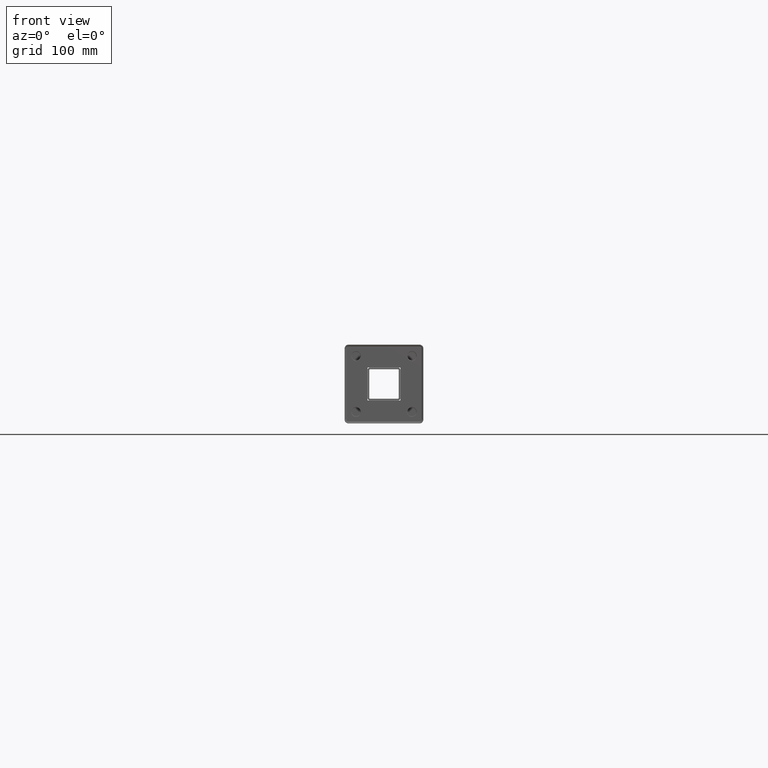
[diagram: clean part render]
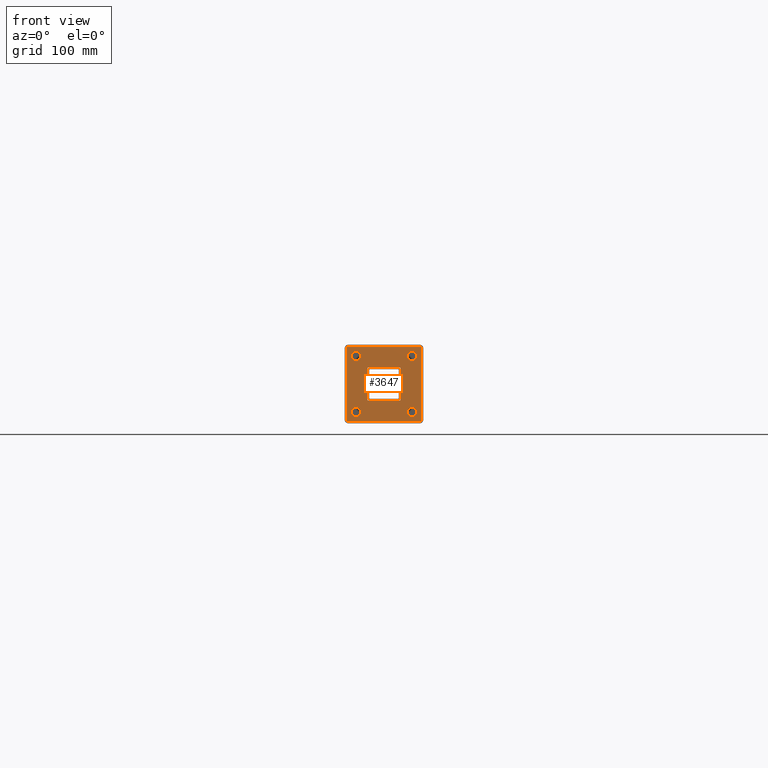
[diagram: same view with one face highlighted and labeled with its STEP entity id]
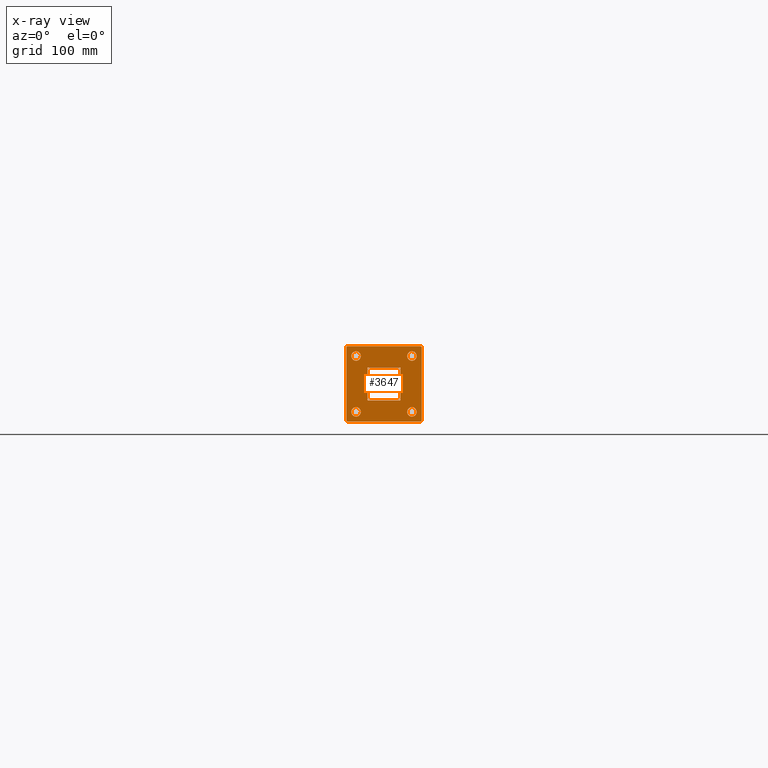
[diagram: x-ray of the same camera — body ghosted, the highlighted face saturated]
A machine part, front view. The second image highlights one B-rep face of the part: STEP entity #3647.
The next image is the same camera in x-ray: the body ghosted, the highlighted face saturated — about 0% of this face is hidden behind the body in this view.
In plain terms, the highlighted planar face has unit normal (0, 1, 0).
Its self-contained STEP definition (entity closure, byte-faithful):
#15 = CIRCLE ( 'NONE', #3242, 5.749999999999991100 ) ;
#26 = VERTEX_POINT ( 'NONE', #920 ) ;
#29 = CARTESIAN_POINT ( 'NONE',  ( 20.09999999999999800, 0.0000000000000000000, 20.10000000000000500 ) ) ;
#72 = DIRECTION ( 'NONE',  ( 0.0000000000000000000, 1.000000000000000000, 0.0000000000000000000 ) ) ;
#76 = CARTESIAN_POINT ( 'NONE',  ( -46.00000000000001400, 0.0000000000000000000, -46.00000000000000000 ) ) ;
#102 = DIRECTION ( 'NONE',  ( 0.0000000000000000000, 0.0000000000000000000, 1.000000000000000000 ) ) ;
#109 = EDGE_CURVE ( 'NONE', #653, #1579, #1048, .T. ) ;
#120 = VERTEX_POINT ( 'NONE', #1484 ) ;
#132 = EDGE_CURVE ( 'NONE', #545, #120, #556, .T. ) ;
#144 = DIRECTION ( 'NONE',  ( 0.0000000000000000000, 0.0000000000000000000, 1.000000000000000000 ) ) ;
#154 = ORIENTED_EDGE ( 'NONE', *, *, #3285, .T. ) ;
#155 = EDGE_LOOP ( 'NONE', ( #2766, #3570, #1320, #2907, #2037, #1062, #2391, #434 ) ) ;
#166 = CARTESIAN_POINT ( 'NONE',  ( -34.00000000000000000, 0.0000000000000000000, 28.25000000000001100 ) ) ;
#184 = AXIS2_PLACEMENT_3D ( 'NONE', #675, #72, #402 ) ;
#194 = CARTESIAN_POINT ( 'NONE',  ( -20.10000000000000500, 0.0000000000000000000, -20.09999999999999800 ) ) ;
#212 = ORIENTED_EDGE ( 'NONE', *, *, #1578, .T. ) ;
#232 = CARTESIAN_POINT ( 'NONE',  ( -34.00000000000000000, 0.0000000000000000000, -34.00000000000000000 ) ) ;
#241 = EDGE_LOOP ( 'NONE', ( #212, #1465 ) ) ;
#242 = CARTESIAN_POINT ( 'NONE',  ( 20.09999999999999800, 0.0000000000000000000, -19.59999999999999400 ) ) ;
#258 = FACE_OUTER_BOUND ( 'NONE', #155, .T. ) ;
#260 = LINE ( 'NONE', #2014, #304 ) ;
#265 = AXIS2_PLACEMENT_3D ( 'NONE', #2040, #2613, #2901 ) ;
#279 = CIRCLE ( 'NONE', #2424, 0.5000000000000004400 ) ;
#304 = VECTOR ( 'NONE', #1489, 1000.000000000000000 ) ;
#324 = CARTESIAN_POINT ( 'NONE',  ( 19.59999999999999400, 0.0000000000000000000, 19.60000000000000100 ) ) ;
#331 = CARTESIAN_POINT ( 'NONE',  ( -20.10000000000000500, 0.0000000000000000000, 19.60000000000000100 ) ) ;
#346 = EDGE_CURVE ( 'NONE', #860, #2710, #1003, .T. ) ;
#380 = DIRECTION ( 'NONE',  ( 0.0000000000000000000, 1.000000000000000000, 0.0000000000000000000 ) ) ;
#390 = DIRECTION ( 'NONE',  ( -1.000000000000000000, -0.0000000000000000000, -7.542275982507857100E-017 ) ) ;
#392 = FACE_BOUND ( 'NONE', #3433, .T. ) ;
#402 = DIRECTION ( 'NONE',  ( 0.0000000000000000000, 0.0000000000000000000, 1.000000000000000000 ) ) ;
#407 = DIRECTION ( 'NONE',  ( 0.0000000000000000000, 0.0000000000000000000, 1.000000000000000000 ) ) ;
#410 = CIRCLE ( 'NONE', #184, 5.749999999999991100 ) ;
#419 = CARTESIAN_POINT ( 'NONE',  ( 34.00000000000000000, 0.0000000000000000000, 34.00000000000000000 ) ) ;
#434 = ORIENTED_EDGE ( 'NONE', *, *, #3247, .T. ) ;
#435 = FACE_BOUND ( 'NONE', #241, .T. ) ;
#443 = CIRCLE ( 'NONE', #1669, 5.749999999999991100 ) ;
#451 = EDGE_CURVE ( 'NONE', #1579, #653, #1361, .T. ) ;
#482 = CARTESIAN_POINT ( 'NONE',  ( 43.99999999999998600, 0.0000000000000000000, -43.99999999999999300 ) ) ;
#517 = ORIENTED_EDGE ( 'NONE', *, *, #1420, .T. ) ;
#545 = VERTEX_POINT ( 'NONE', #2569 ) ;
#547 = CARTESIAN_POINT ( 'NONE',  ( -20.10000000000000500, 0.0000000000000000000, -19.59999999999999400 ) ) ;
#549 = ORIENTED_EDGE ( 'NONE', *, *, #2368, .T. ) ;
#556 = CIRCLE ( 'NONE', #936, 2.000000000000001800 ) ;
#565 = DIRECTION ( 'NONE',  ( -0.0000000000000000000, -1.000000000000000000, -0.0000000000000000000 ) ) ;
#591 = CIRCLE ( 'NONE', #1765, 0.5000000000000004400 ) ;
#653 = VERTEX_POINT ( 'NONE', #1158 ) ;
#661 = EDGE_CURVE ( 'NONE', #1556, #3611, #279, .T. ) ;
#675 = CARTESIAN_POINT ( 'NONE',  ( 34.00000000000000000, 0.0000000000000000000, -34.00000000000000000 ) ) ;
#677 = DIRECTION ( 'NONE',  ( 0.0000000000000000000, 0.0000000000000000000, 1.000000000000000000 ) ) ;
#748 = VECTOR ( 'NONE', #787, 1000.000000000000000 ) ;
#756 = DIRECTION ( 'NONE',  ( 0.0000000000000000000, 0.0000000000000000000, 1.000000000000000000 ) ) ;
#787 = DIRECTION ( 'NONE',  ( -1.000000000000000000, -0.0000000000000000000, -0.0000000000000000000 ) ) ;
#789 = CARTESIAN_POINT ( 'NONE',  ( -43.99999999999999300, 0.0000000000000000000, 44.00000000000000700 ) ) ;
#821 = ORIENTED_EDGE ( 'NONE', *, *, #661, .T. ) ;
#835 = CARTESIAN_POINT ( 'NONE',  ( 0.0000000000000000000, 0.0000000000000000000, 0.0000000000000000000 ) ) ;
#843 = CARTESIAN_POINT ( 'NONE',  ( -46.00000000000001400, 0.0000000000000000000, -44.00000000000000000 ) ) ;
#853 = DIRECTION ( 'NONE',  ( 0.0000000000000000000, 0.0000000000000000000, 1.000000000000000000 ) ) ;
#860 = VERTEX_POINT ( 'NONE', #1958 ) ;
#862 = CARTESIAN_POINT ( 'NONE',  ( -19.60000000000000100, 0.0000000000000000000, -19.59999999999999400 ) ) ;
#892 = VERTEX_POINT ( 'NONE', #843 ) ;
#920 = CARTESIAN_POINT ( 'NONE',  ( -44.00000000000001400, 0.0000000000000000000, -46.00000000000000000 ) ) ;
#927 = EDGE_CURVE ( 'NONE', #1941, #3267, #1794, .T. ) ;
#936 = AXIS2_PLACEMENT_3D ( 'NONE', #958, #2073, #102 ) ;
#941 = VECTOR ( 'NONE', #2111, 1000.000000000000000 ) ;
#953 = LINE ( 'NONE', #2969, #2581 ) ;
#958 = CARTESIAN_POINT ( 'NONE',  ( 44.00000000000000700, 0.0000000000000000000, 44.00000000000000700 ) ) ;
#961 = AXIS2_PLACEMENT_3D ( 'NONE', #3198, #3239, #677 ) ;
#978 = FACE_BOUND ( 'NONE', #3436, .T. ) ;
#983 = AXIS2_PLACEMENT_3D ( 'NONE', #232, #3661, #1707 ) ;
#1003 = CIRCLE ( 'NONE', #1295, 2.000000000000001800 ) ;
#1012 = EDGE_CURVE ( 'NONE', #860, #26, #3472, .T. ) ;
#1048 = CIRCLE ( 'NONE', #2407, 5.749999999999991100 ) ;
#1062 = ORIENTED_EDGE ( 'NONE', *, *, #2668, .T. ) ;
#1069 = EDGE_CURVE ( 'NONE', #1805, #3098, #2713, .T. ) ;
#1070 = EDGE_CURVE ( 'NONE', #3098, #1805, #15, .T. ) ;
#1078 = DIRECTION ( 'NONE',  ( -0.0000000000000000000, -1.000000000000000000, -0.0000000000000000000 ) ) ;
#1081 = CARTESIAN_POINT ( 'NONE',  ( -45.99999999999999300, 0.0000000000000000000, 44.00000000000000000 ) ) ;
#1096 = CARTESIAN_POINT ( 'NONE',  ( 34.00000000000000000, 0.0000000000000000000, -34.00000000000000000 ) ) ;
#1137 = DIRECTION ( 'NONE',  ( -1.508455196501571400E-016, -0.0000000000000000000, -1.000000000000000000 ) ) ;
#1142 = EDGE_LOOP ( 'NONE', ( #549, #2353 ) ) ;
#1152 = ORIENTED_EDGE ( 'NONE', *, *, #3105, .T. ) ;
#1155 = DIRECTION ( 'NONE',  ( 0.0000000000000000000, 0.0000000000000000000, 1.000000000000000000 ) ) ;
#1158 = CARTESIAN_POINT ( 'NONE',  ( -34.00000000000000000, 0.0000000000000000000, -39.74999999999999300 ) ) ;
#1194 = ORIENTED_EDGE ( 'NONE', *, *, #1624, .T. ) ;
#1222 = DIRECTION ( 'NONE',  ( 0.0000000000000000000, 0.0000000000000000000, 1.000000000000000000 ) ) ;
#1238 = DIRECTION ( 'NONE',  ( 0.0000000000000000000, 1.000000000000000000, 0.0000000000000000000 ) ) ;
#1245 = VERTEX_POINT ( 'NONE', #1081 ) ;
#1285 = ORIENTED_EDGE ( 'NONE', *, *, #451, .T. ) ;
#1289 = CARTESIAN_POINT ( 'NONE',  ( -19.60000000000000100, 0.0000000000000000000, 20.10000000000000500 ) ) ;
#1295 = AXIS2_PLACEMENT_3D ( 'NONE', #482, #1078, #756 ) ;
#1320 = ORIENTED_EDGE ( 'NONE', *, *, #2402, .F. ) ;
#1346 = CIRCLE ( 'NONE', #1480, 0.5000000000000004400 ) ;
#1358 = EDGE_CURVE ( 'NONE', #2159, #3529, #591, .T. ) ;
#1361 = CIRCLE ( 'NONE', #983, 5.749999999999991100 ) ;
#1364 = CARTESIAN_POINT ( 'NONE',  ( 34.00000000000000000, 0.0000000000000000000, 39.74999999999999300 ) ) ;
#1383 = DIRECTION ( 'NONE',  ( 0.0000000000000000000, 1.000000000000000000, 0.0000000000000000000 ) ) ;
#1397 = DIRECTION ( 'NONE',  ( 0.0000000000000000000, 1.000000000000000000, 0.0000000000000000000 ) ) ;
#1420 = EDGE_CURVE ( 'NONE', #3182, #2826, #2671, .T. ) ;
#1425 = DIRECTION ( 'NONE',  ( 0.0000000000000000000, 0.0000000000000000000, 1.000000000000000000 ) ) ;
#1465 = ORIENTED_EDGE ( 'NONE', *, *, #927, .T. ) ;
#1469 = DIRECTION ( 'NONE',  ( 0.0000000000000000000, 0.0000000000000000000, 1.000000000000000000 ) ) ;
#1480 = AXIS2_PLACEMENT_3D ( 'NONE', #3264, #1599, #144 ) ;
#1484 = CARTESIAN_POINT ( 'NONE',  ( 44.00000000000000700, 0.0000000000000000000, 46.00000000000000700 ) ) ;
#1489 = DIRECTION ( 'NONE',  ( 1.000000000000000000, 0.0000000000000000000, 0.0000000000000000000 ) ) ;
#1556 = VERTEX_POINT ( 'NONE', #2913 ) ;
#1563 = EDGE_LOOP ( 'NONE', ( #1194, #2646, #154, #517, #3625, #3142, #1152, #821 ) ) ;
#1578 = EDGE_CURVE ( 'NONE', #3267, #1941, #410, .T. ) ;
#1579 = VERTEX_POINT ( 'NONE', #2631 ) ;
#1596 = LINE ( 'NONE', #194, #748 ) ;
#1599 = DIRECTION ( 'NONE',  ( 0.0000000000000000000, 1.000000000000000000, 0.0000000000000000000 ) ) ;
#1624 = EDGE_CURVE ( 'NONE', #3611, #2159, #3074, .T. ) ;
#1669 = AXIS2_PLACEMENT_3D ( 'NONE', #2527, #1397, #1155 ) ;
#1707 = DIRECTION ( 'NONE',  ( 0.0000000000000000000, 0.0000000000000000000, 1.000000000000000000 ) ) ;
#1722 = VERTEX_POINT ( 'NONE', #3549 ) ;
#1724 = EDGE_CURVE ( 'NONE', #1838, #2639, #1346, .T. ) ;
#1729 = FACE_BOUND ( 'NONE', #1563, .T. ) ;
#1744 = CARTESIAN_POINT ( 'NONE',  ( 20.09999999999999800, 0.0000000000000000000, 19.60000000000000100 ) ) ;
#1747 = VERTEX_POINT ( 'NONE', #2452 ) ;
#1765 = AXIS2_PLACEMENT_3D ( 'NONE', #2828, #3116, #1425 ) ;
#1777 = CIRCLE ( 'NONE', #265, 2.000000000000001800 ) ;
#1779 = DIRECTION ( 'NONE',  ( -0.0000000000000000000, -0.0000000000000000000, 1.000000000000000000 ) ) ;
#1783 = CARTESIAN_POINT ( 'NONE',  ( -34.00000000000000000, 0.0000000000000000000, -34.00000000000000000 ) ) ;
#1793 = CARTESIAN_POINT ( 'NONE',  ( -34.00000000000000000, 0.0000000000000000000, 34.00000000000000000 ) ) ;
#1794 = CIRCLE ( 'NONE', #2846, 5.749999999999991100 ) ;
#1805 = VERTEX_POINT ( 'NONE', #166 ) ;
#1826 = VECTOR ( 'NONE', #1137, 1000.000000000000000 ) ;
#1838 = VERTEX_POINT ( 'NONE', #242 ) ;
#1867 = CIRCLE ( 'NONE', #1932, 5.749999999999991100 ) ;
#1932 = AXIS2_PLACEMENT_3D ( 'NONE', #419, #2109, #407 ) ;
#1941 = VERTEX_POINT ( 'NONE', #3099 ) ;
#1958 = CARTESIAN_POINT ( 'NONE',  ( 43.99999999999998600, 0.0000000000000000000, -45.99999999999999300 ) ) ;
#1999 = LINE ( 'NONE', #3243, #941 ) ;
#2009 = EDGE_CURVE ( 'NONE', #3044, #1747, #443, .T. ) ;
#2014 = CARTESIAN_POINT ( 'NONE',  ( -20.10000000000000500, 0.0000000000000000000, 20.10000000000000500 ) ) ;
#2037 = ORIENTED_EDGE ( 'NONE', *, *, #3333, .F. ) ;
#2040 = CARTESIAN_POINT ( 'NONE',  ( -44.00000000000001400, 0.0000000000000000000, -44.00000000000000000 ) ) ;
#2073 = DIRECTION ( 'NONE',  ( -0.0000000000000000000, -1.000000000000000000, -0.0000000000000000000 ) ) ;
#2107 = FACE_BOUND ( 'NONE', #1142, .T. ) ;
#2109 = DIRECTION ( 'NONE',  ( 0.0000000000000000000, 1.000000000000000000, 0.0000000000000000000 ) ) ;
#2111 = DIRECTION ( 'NONE',  ( 1.000000000000000000, 0.0000000000000000000, 0.0000000000000000000 ) ) ;
#2140 = CIRCLE ( 'NONE', #3120, 2.000000000000001800 ) ;
#2147 = AXIS2_PLACEMENT_3D ( 'NONE', #324, #2605, #3159 ) ;
#2159 = VERTEX_POINT ( 'NONE', #331 ) ;
#2211 = DIRECTION ( 'NONE',  ( 0.0000000000000000000, -0.0000000000000000000, 1.000000000000000000 ) ) ;
#2252 = ORIENTED_EDGE ( 'NONE', *, *, #109, .T. ) ;
#2268 = CARTESIAN_POINT ( 'NONE',  ( 19.59999999999999400, 0.0000000000000000000, -20.09999999999999800 ) ) ;
#2353 = ORIENTED_EDGE ( 'NONE', *, *, #2009, .T. ) ;
#2364 = LINE ( 'NONE', #2708, #1826 ) ;
#2366 = CARTESIAN_POINT ( 'NONE',  ( -20.10000000000000500, 0.0000000000000000000, 20.10000000000000500 ) ) ;
#2368 = EDGE_CURVE ( 'NONE', #1747, #3044, #1867, .T. ) ;
#2375 = DIRECTION ( 'NONE',  ( 2.262682794752357100E-016, 0.0000000000000000000, 1.000000000000000000 ) ) ;
#2391 = ORIENTED_EDGE ( 'NONE', *, *, #3393, .F. ) ;
#2402 = EDGE_CURVE ( 'NONE', #545, #2710, #2364, .T. ) ;
#2407 = AXIS2_PLACEMENT_3D ( 'NONE', #1783, #1238, #1222 ) ;
#2424 = AXIS2_PLACEMENT_3D ( 'NONE', #862, #3133, #1469 ) ;
#2452 = CARTESIAN_POINT ( 'NONE',  ( 34.00000000000000000, 0.0000000000000000000, 28.25000000000001100 ) ) ;
#2507 = DIRECTION ( 'NONE',  ( 0.0000000000000000000, 1.000000000000000000, 0.0000000000000000000 ) ) ;
#2527 = CARTESIAN_POINT ( 'NONE',  ( 34.00000000000000000, 0.0000000000000000000, 34.00000000000000000 ) ) ;
#2559 = ORIENTED_EDGE ( 'NONE', *, *, #1070, .T. ) ;
#2569 = CARTESIAN_POINT ( 'NONE',  ( 46.00000000000000700, 0.0000000000000000000, 44.00000000000000700 ) ) ;
#2581 = VECTOR ( 'NONE', #2375, 1000.000000000000000 ) ;
#2605 = DIRECTION ( 'NONE',  ( 0.0000000000000000000, 1.000000000000000000, 0.0000000000000000000 ) ) ;
#2613 = DIRECTION ( 'NONE',  ( -0.0000000000000000000, -1.000000000000000000, -0.0000000000000000000 ) ) ;
#2631 = CARTESIAN_POINT ( 'NONE',  ( -34.00000000000000000, 0.0000000000000000000, -28.25000000000001100 ) ) ;
#2639 = VERTEX_POINT ( 'NONE', #2268 ) ;
#2646 = ORIENTED_EDGE ( 'NONE', *, *, #1358, .T. ) ;
#2668 = EDGE_CURVE ( 'NONE', #1722, #1245, #2140, .T. ) ;
#2671 = CIRCLE ( 'NONE', #2147, 0.5000000000000004400 ) ;
#2708 = CARTESIAN_POINT ( 'NONE',  ( 45.99999999999999300, 0.0000000000000000000, -45.99999999999999300 ) ) ;
#2710 = VERTEX_POINT ( 'NONE', #3622 ) ;
#2713 = CIRCLE ( 'NONE', #961, 5.749999999999991100 ) ;
#2750 = CARTESIAN_POINT ( 'NONE',  ( -34.00000000000000000, 0.0000000000000000000, 39.74999999999999300 ) ) ;
#2764 = DIRECTION ( 'NONE',  ( 0.0000000000000000000, 0.0000000000000000000, 1.000000000000000000 ) ) ;
#2766 = ORIENTED_EDGE ( 'NONE', *, *, #1012, .F. ) ;
#2826 = VERTEX_POINT ( 'NONE', #1744 ) ;
#2828 = CARTESIAN_POINT ( 'NONE',  ( -19.60000000000000100, 0.0000000000000000000, 19.60000000000000100 ) ) ;
#2846 = AXIS2_PLACEMENT_3D ( 'NONE', #1096, #1383, #853 ) ;
#2888 = CARTESIAN_POINT ( 'NONE',  ( 34.00000000000000000, 0.0000000000000000000, -39.74999999999999300 ) ) ;
#2901 = DIRECTION ( 'NONE',  ( 0.0000000000000000000, 0.0000000000000000000, 1.000000000000000000 ) ) ;
#2907 = ORIENTED_EDGE ( 'NONE', *, *, #132, .T. ) ;
#2913 = CARTESIAN_POINT ( 'NONE',  ( -19.60000000000000100, 0.0000000000000000000, -20.09999999999999800 ) ) ;
#2969 = CARTESIAN_POINT ( 'NONE',  ( -46.00000000000001400, 0.0000000000000000000, -46.00000000000000000 ) ) ;
#3044 = VERTEX_POINT ( 'NONE', #1364 ) ;
#3074 = LINE ( 'NONE', #2366, #3115 ) ;
#3098 = VERTEX_POINT ( 'NONE', #2750 ) ;
#3099 = CARTESIAN_POINT ( 'NONE',  ( 34.00000000000000000, 0.0000000000000000000, -28.25000000000001100 ) ) ;
#3105 = EDGE_CURVE ( 'NONE', #2639, #1556, #1596, .T. ) ;
#3115 = VECTOR ( 'NONE', #1779, 1000.000000000000000 ) ;
#3116 = DIRECTION ( 'NONE',  ( 0.0000000000000000000, 1.000000000000000000, 0.0000000000000000000 ) ) ;
#3120 = AXIS2_PLACEMENT_3D ( 'NONE', #789, #565, #2764 ) ;
#3133 = DIRECTION ( 'NONE',  ( 0.0000000000000000000, 1.000000000000000000, 0.0000000000000000000 ) ) ;
#3142 = ORIENTED_EDGE ( 'NONE', *, *, #1724, .T. ) ;
#3159 = DIRECTION ( 'NONE',  ( 0.0000000000000000000, 0.0000000000000000000, 1.000000000000000000 ) ) ;
#3179 = AXIS2_PLACEMENT_3D ( 'NONE', #835, #2507, #2211 ) ;
#3182 = VERTEX_POINT ( 'NONE', #3634 ) ;
#3198 = CARTESIAN_POINT ( 'NONE',  ( -34.00000000000000000, 0.0000000000000000000, 34.00000000000000000 ) ) ;
#3225 = DIRECTION ( 'NONE',  ( 0.0000000000000000000, 0.0000000000000000000, 1.000000000000000000 ) ) ;
#3239 = DIRECTION ( 'NONE',  ( 0.0000000000000000000, 1.000000000000000000, 0.0000000000000000000 ) ) ;
#3242 = AXIS2_PLACEMENT_3D ( 'NONE', #1793, #380, #3225 ) ;
#3243 = CARTESIAN_POINT ( 'NONE',  ( -45.99999999999999300, 0.0000000000000000000, 46.00000000000000700 ) ) ;
#3247 = EDGE_CURVE ( 'NONE', #892, #26, #1777, .T. ) ;
#3264 = CARTESIAN_POINT ( 'NONE',  ( 19.59999999999999400, 0.0000000000000000000, -19.59999999999999400 ) ) ;
#3267 = VERTEX_POINT ( 'NONE', #2888 ) ;
#3272 = EDGE_CURVE ( 'NONE', #2826, #1838, #3280, .T. ) ;
#3280 = LINE ( 'NONE', #29, #3506 ) ;
#3285 = EDGE_CURVE ( 'NONE', #3529, #3182, #260, .T. ) ;
#3294 = ORIENTED_EDGE ( 'NONE', *, *, #1069, .T. ) ;
#3333 = EDGE_CURVE ( 'NONE', #1722, #120, #1999, .T. ) ;
#3360 = PLANE ( 'NONE',  #3179 ) ;
#3393 = EDGE_CURVE ( 'NONE', #892, #1245, #953, .T. ) ;
#3433 = EDGE_LOOP ( 'NONE', ( #3294, #2559 ) ) ;
#3436 = EDGE_LOOP ( 'NONE', ( #2252, #1285 ) ) ;
#3458 = DIRECTION ( 'NONE',  ( 0.0000000000000000000, 0.0000000000000000000, -1.000000000000000000 ) ) ;
#3472 = LINE ( 'NONE', #76, #3600 ) ;
#3506 = VECTOR ( 'NONE', #3458, 1000.000000000000000 ) ;
#3529 = VERTEX_POINT ( 'NONE', #1289 ) ;
#3549 = CARTESIAN_POINT ( 'NONE',  ( -43.99999999999999300, 0.0000000000000000000, 46.00000000000000700 ) ) ;
#3570 = ORIENTED_EDGE ( 'NONE', *, *, #346, .T. ) ;
#3600 = VECTOR ( 'NONE', #390, 1000.000000000000000 ) ;
#3611 = VERTEX_POINT ( 'NONE', #547 ) ;
#3622 = CARTESIAN_POINT ( 'NONE',  ( 45.99999999999999300, 0.0000000000000000000, -43.99999999999999300 ) ) ;
#3625 = ORIENTED_EDGE ( 'NONE', *, *, #3272, .T. ) ;
#3634 = CARTESIAN_POINT ( 'NONE',  ( 19.59999999999999400, 0.0000000000000000000, 20.10000000000000500 ) ) ;
#3647 = ADVANCED_FACE ( 'NONE', ( #1729, #2107, #435, #978, #392, #258 ), #3360, .F. ) ;
#3661 = DIRECTION ( 'NONE',  ( 0.0000000000000000000, 1.000000000000000000, 0.0000000000000000000 ) ) ;